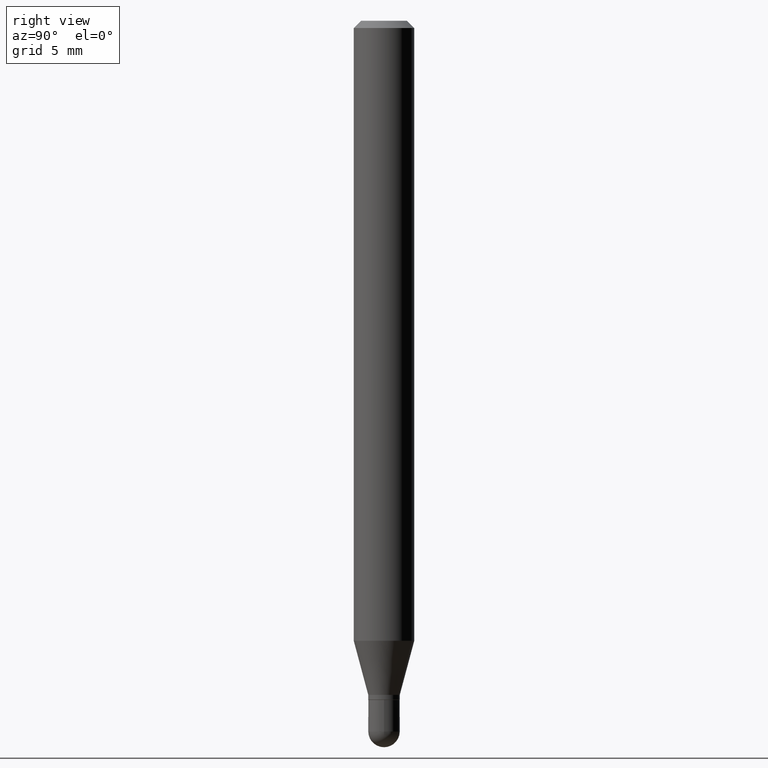
[diagram: clean part render]
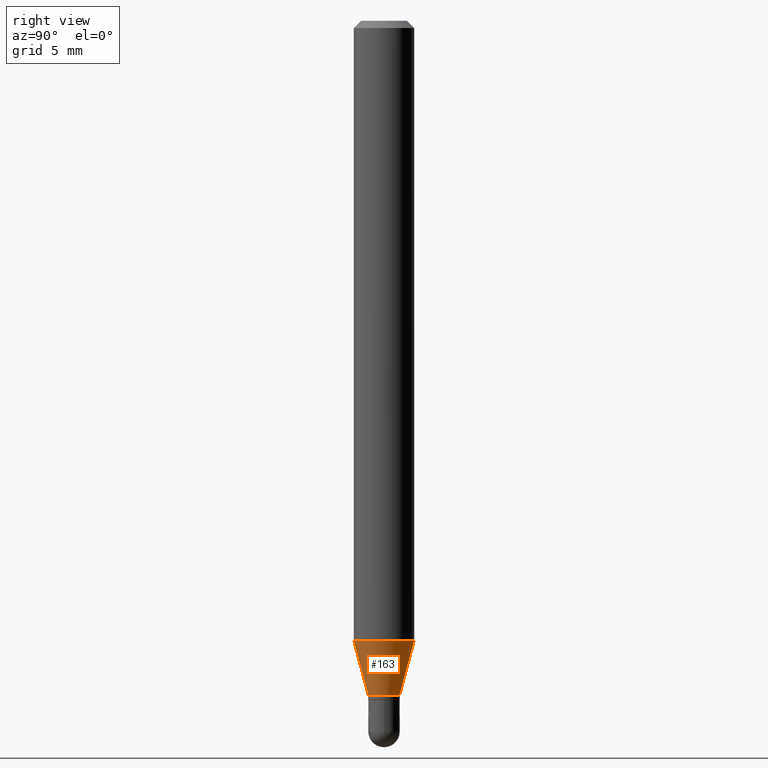
[diagram: same view with one face highlighted and labeled with its STEP entity id]
A machine part, right view. The second image highlights one B-rep face of the part: STEP entity #163.
In plain terms, the highlighted conical surface has half-angle 15 deg.
Its self-contained STEP definition (entity closure, byte-faithful):
#3 = AXIS2_PLACEMENT_3D ( 'NONE', #405, #52, #359 ) ;
#12 = EDGE_CURVE ( 'NONE', #418, #285, #233, .T. ) ;
#16 = AXIS2_PLACEMENT_3D ( 'NONE', #139, #411, #458 ) ;
#52 = DIRECTION ( 'NONE',  ( -2.445482281465113779E-29, 3.491462041475252887E-15, 1.000000000000000000 ) ) ;
#67 = DIRECTION ( 'NONE',  ( -1.807323732225330139E-15, -0.2588190451025181860, 0.9659258262890689783 ) ) ;
#72 = DIRECTION ( 'NONE',  ( -2.445482281465113779E-29, 3.491462041475252887E-15, 1.000000000000000000 ) ) ;
#92 = ORIENTED_EDGE ( 'NONE', *, *, #195, .F. ) ;
#104 = EDGE_CURVE ( 'NONE', #285, #420, #489, .T. ) ;
#121 = DIRECTION ( 'NONE',  ( -6.982962677686265922E-15, -1.000000000000000000, 4.370956789862821150E-15 ) ) ;
#129 = ORIENTED_EDGE ( 'NONE', *, *, #12, .T. ) ;
#139 = CARTESIAN_POINT ( 'NONE',  ( 3.404111335799438775E-29, -4.860115161733551679E-15, -1.392000000000000126 ) ) ;
#150 = CARTESIAN_POINT ( 'NONE',  ( -4.364351673553605094E-16, -0.06250000000000451028, -1.280038475772934614 ) ) ;
#158 = VECTOR ( 'NONE', #303, 39.37007874015748143 ) ;
#161 = CARTESIAN_POINT ( 'NONE',  ( -2.269462870247710093E-16, -0.03250000000000505956, -1.392000000000000126 ) ) ;
#163 = ADVANCED_FACE ( 'NONE', ( #406 ), #485, .T. ) ;
#171 = ORIENTED_EDGE ( 'NONE', *, *, #104, .T. ) ;
#189 = CARTESIAN_POINT ( 'NONE',  ( -2.269462870247710093E-16, -0.03250000000000505956, -1.392000000000000126 ) ) ;
#195 = EDGE_CURVE ( 'NONE', #418, #273, #421, .T. ) ;
#217 = VECTOR ( 'NONE', #67, 39.37007874015748143 ) ;
#233 = CIRCLE ( 'NONE', #3, 0.03250000000000020234 ) ;
#253 = ORIENTED_EDGE ( 'NONE', *, *, #385, .F. ) ;
#269 = CARTESIAN_POINT ( 'NONE',  ( 3.375077994860809709E-16, 0.03249999999999533817, -1.392000000000000126 ) ) ;
#273 = VERTEX_POINT ( 'NONE', #150 ) ;
#285 = VERTEX_POINT ( 'NONE', #269 ) ;
#290 = CARTESIAN_POINT ( 'NONE',  ( 4.440892098500935790E-16, 0.06249999999999548972, -1.280038475772935058 ) ) ;
#303 = DIRECTION ( 'NONE',  ( 1.839019923739600315E-15, 0.2588190451025249583, 0.9659258262890670910 ) ) ;
#356 = CIRCLE ( 'NONE', #500, 0.06250000000000000000 ) ;
#359 = DIRECTION ( 'NONE',  ( -6.982962677686265133E-15, -1.000000000000000000, 0.000000000000000000 ) ) ;
#385 = EDGE_CURVE ( 'NONE', #273, #420, #356, .T. ) ;
#405 = CARTESIAN_POINT ( 'NONE',  ( 3.404111335799438775E-29, -4.860115161733551679E-15, -1.392000000000000126 ) ) ;
#406 = FACE_OUTER_BOUND ( 'NONE', #498, .T. ) ;
#408 = CARTESIAN_POINT ( 'NONE',  ( 2.309263891220679684E-16, 0.03249999999999533817, -1.392000000000000126 ) ) ;
#411 = DIRECTION ( 'NONE',  ( -2.445482281465113779E-29, 3.491462041475252887E-15, 1.000000000000000000 ) ) ;
#418 = VERTEX_POINT ( 'NONE', #161 ) ;
#420 = VERTEX_POINT ( 'NONE', #290 ) ;
#421 = LINE ( 'NONE', #189, #217 ) ;
#458 = DIRECTION ( 'NONE',  ( -6.982962677686265133E-15, -1.000000000000000000, 0.000000000000000000 ) ) ;
#467 = CARTESIAN_POINT ( 'NONE',  ( 3.130311412096322891E-29, -4.469205749789042696E-15, -1.280038475772934836 ) ) ;
#485 = CONICAL_SURFACE ( 'NONE', #16, 0.03250000000000020234, 0.2617993877991502960 ) ;
#489 = LINE ( 'NONE', #408, #158 ) ;
#498 = EDGE_LOOP ( 'NONE', ( #129, #171, #253, #92 ) ) ;
#500 = AXIS2_PLACEMENT_3D ( 'NONE', #467, #72, #121 ) ;